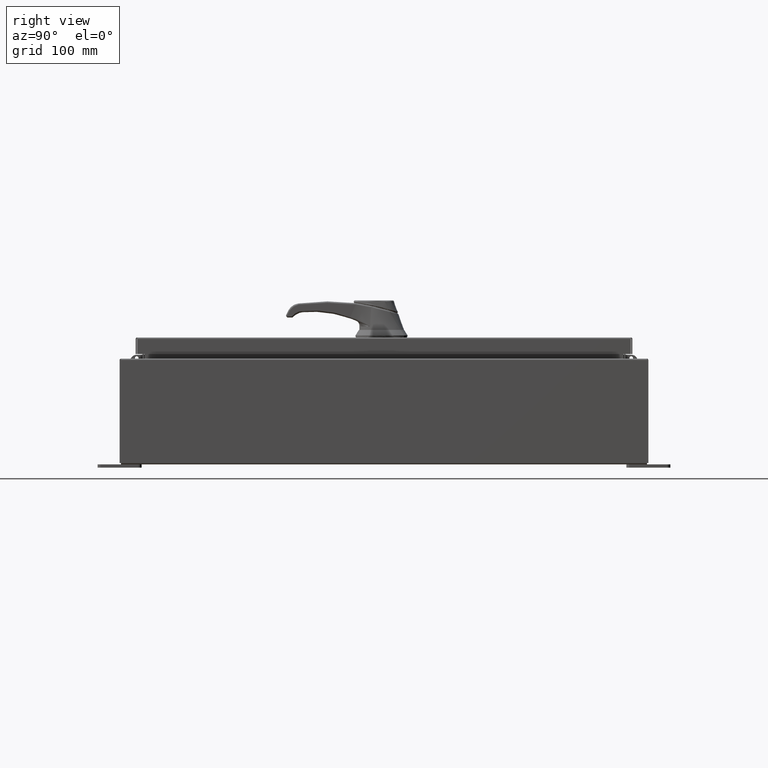
[diagram: clean part render]
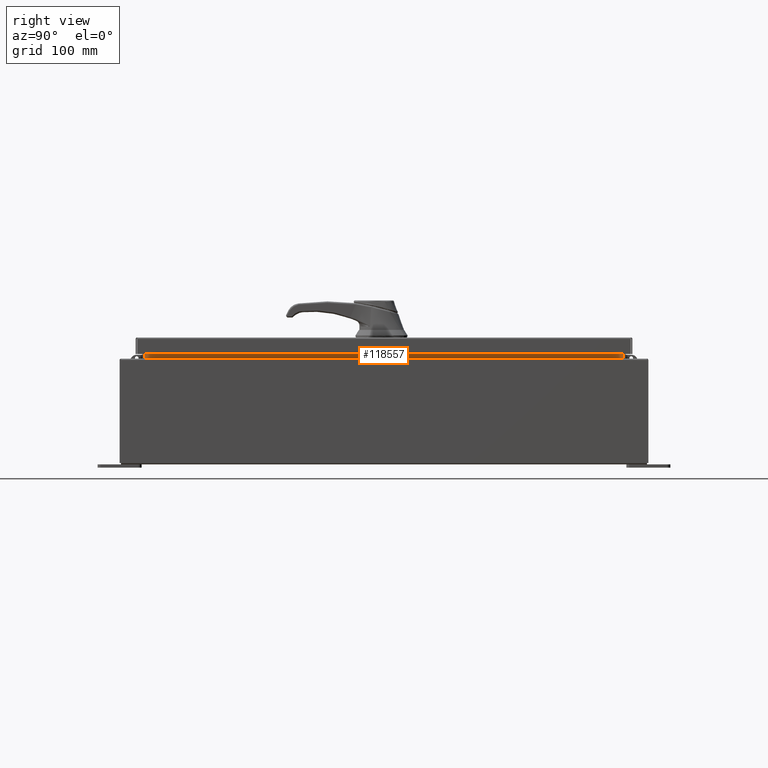
[diagram: same view with one face highlighted and labeled with its STEP entity id]
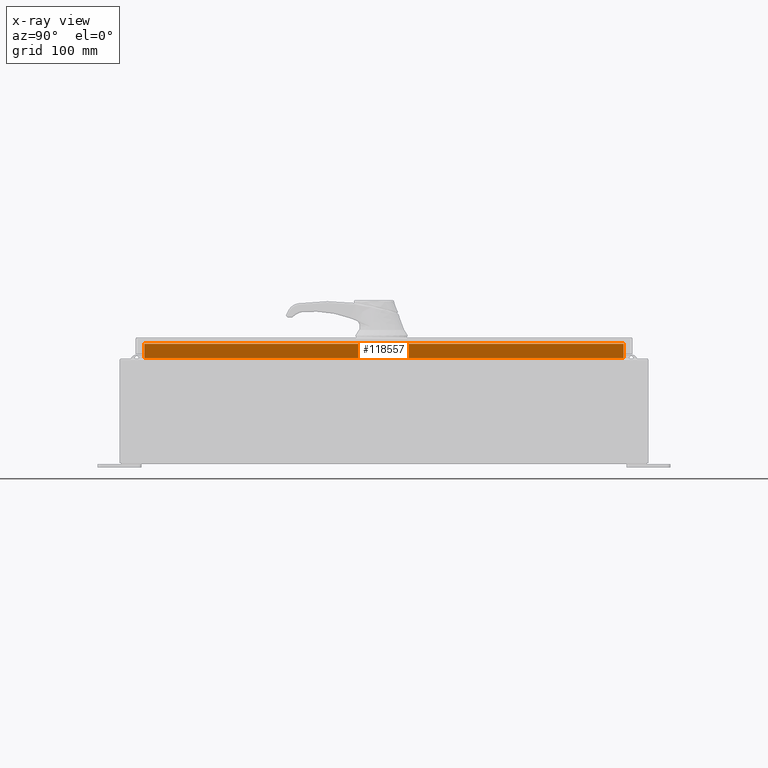
[diagram: x-ray of the same camera — body ghosted, the highlighted face saturated]
A machine part, right view. The second image highlights one B-rep face of the part: STEP entity #118557.
The next image is the same camera in x-ray: the body ghosted, the highlighted face saturated — about 0% of this face is hidden behind the body in this view.
In plain terms, the highlighted planar face has unit normal (1, 0, -0).
Its self-contained STEP definition (entity closure, byte-faithful):
#686 = CARTESIAN_POINT ( 'NONE',  ( 10.69969999999998900, 0.0000000000000000000, -5.054352789851418100E-014 ) ) ;
#1545 = VECTOR ( 'NONE', #14958, 39.37007874015748100 ) ;
#3210 = CARTESIAN_POINT ( 'NONE',  ( 10.69970000000002100, 13.59375000000000200, 6.762900000000009900 ) ) ;
#5236 = CARTESIAN_POINT ( 'NONE',  ( 10.69970000000002100, -13.59375000000000200, 6.762900000000009900 ) ) ;
#9106 = VECTOR ( 'NONE', #36457, 39.37007874015748100 ) ;
#14958 = DIRECTION ( 'NONE',  ( 0.0000000000000000000, 1.000000000000000000, 0.0000000000000000000 ) ) ;
#19304 = LINE ( 'NONE', #114679, #67929 ) ;
#20954 = EDGE_LOOP ( 'NONE', ( #24784, #76682, #76830, #68407 ) ) ;
#22802 = VERTEX_POINT ( 'NONE', #3210 ) ;
#24708 = DIRECTION ( 'NONE',  ( 4.723826639860403100E-015, -0.0000000000000000000, 1.000000000000000000 ) ) ;
#24784 = ORIENTED_EDGE ( 'NONE', *, *, #32254, .F. ) ;
#25846 = LINE ( 'NONE', #32963, #1545 ) ;
#28267 = PLANE ( 'NONE',  #59482 ) ;
#32254 = EDGE_CURVE ( 'NONE', #22802, #100020, #19304, .T. ) ;
#32963 = CARTESIAN_POINT ( 'NONE',  ( 10.69970000000002100, -13.59375000000000200, 6.762900000000009900 ) ) ;
#36457 = DIRECTION ( 'NONE',  ( 1.607708244547244000E-016, -1.000000000000000000, 1.607708244547244000E-016 ) ) ;
#45606 = CARTESIAN_POINT ( 'NONE',  ( 10.69970000000001400, 13.59375000000000200, 5.938300000000010600 ) ) ;
#55791 = DIRECTION ( 'NONE',  ( -4.723826639860392000E-015, 0.0000000000000000000, -1.000000000000000000 ) ) ;
#57777 = VERTEX_POINT ( 'NONE', #82777 ) ;
#59482 = AXIS2_PLACEMENT_3D ( 'NONE', #686, #110712, #55791 ) ;
#59757 = DIRECTION ( 'NONE',  ( -4.723826639860392000E-015, -0.0000000000000000000, -1.000000000000000000 ) ) ;
#62229 = LINE ( 'NONE', #79567, #86757 ) ;
#63533 = VERTEX_POINT ( 'NONE', #5236 ) ;
#67929 = VECTOR ( 'NONE', #59757, 39.37007874015748100 ) ;
#68407 = ORIENTED_EDGE ( 'NONE', *, *, #111458, .F. ) ;
#72707 = CARTESIAN_POINT ( 'NONE',  ( 10.69970000000001800, 13.59375000000000400, 5.938300000000012300 ) ) ;
#76682 = ORIENTED_EDGE ( 'NONE', *, *, #101374, .F. ) ;
#76830 = ORIENTED_EDGE ( 'NONE', *, *, #94790, .F. ) ;
#79281 = LINE ( 'NONE', #45606, #9106 ) ;
#79567 = CARTESIAN_POINT ( 'NONE',  ( 10.69970000000002100, -13.59375000000000200, 6.850600000000010700 ) ) ;
#82777 = CARTESIAN_POINT ( 'NONE',  ( 10.69970000000001800, -13.59375000000000400, 5.938300000000012300 ) ) ;
#86757 = VECTOR ( 'NONE', #24708, 39.37007874015748100 ) ;
#89808 = FACE_OUTER_BOUND ( 'NONE', #20954, .T. ) ;
#94790 = EDGE_CURVE ( 'NONE', #57777, #63533, #62229, .T. ) ;
#100020 = VERTEX_POINT ( 'NONE', #72707 ) ;
#101374 = EDGE_CURVE ( 'NONE', #63533, #22802, #25846, .T. ) ;
#110712 = DIRECTION ( 'NONE',  ( 1.000000000000000000, 0.0000000000000000000, -4.723826639860392000E-015 ) ) ;
#111458 = EDGE_CURVE ( 'NONE', #100020, #57777, #79281, .T. ) ;
#114679 = CARTESIAN_POINT ( 'NONE',  ( 10.69970000000001800, 13.59375000000000200, 5.925300000000009800 ) ) ;
#118557 = ADVANCED_FACE ( 'NONE', ( #89808 ), #28267, .T. ) ;